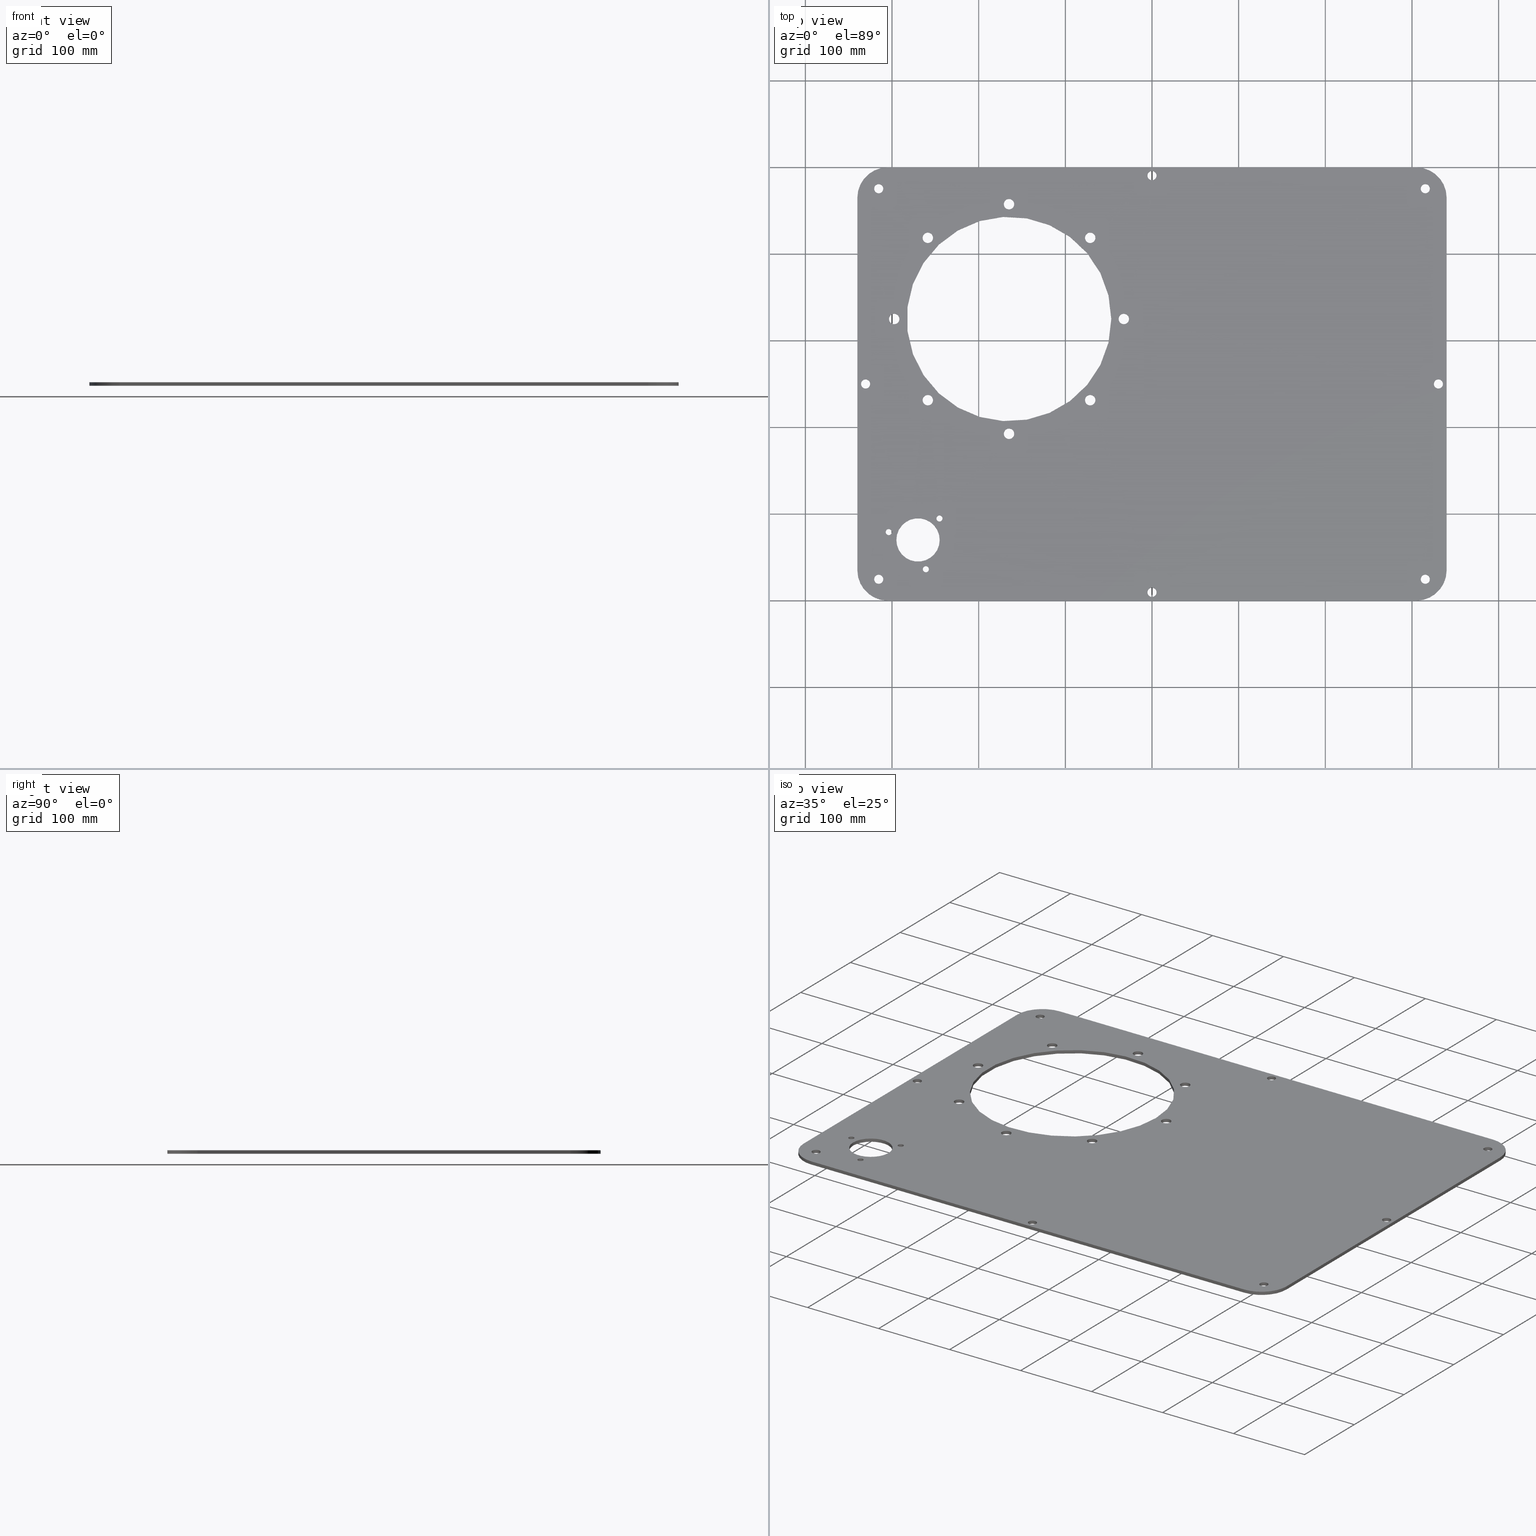
[diagram: canonical four-view strip — front | top / right | iso, engineering-drawing reading convention]
A machine part, canonical four-view strip (front | top / right | iso — engineering-drawing reading convention). The complete STEP part file that produces these views, byte-faithful:
ISO-10303-21;
HEADER;
/* Generated by software containing ST-Developer
 * from STEP Tools, Inc. (www.steptools.com) 
 */
/* OPTION: using custom schema-name function */

FILE_DESCRIPTION(
/* description */ (''),
/* implementation_level */ '2;1');

FILE_NAME(
/* name */ '100300',
/* time_stamp */ '2016-04-15T18:00:00+03:00',
/* author */ (''),
/* organization */ (''),
/* preprocessor_version */ 'ST-DEVELOPER v9',
/* originating_system */ 'UGS - NX 4.0',
/* authorisation */ '');

FILE_SCHEMA (('AUTOMOTIVE_DESIGN { 1 0 10303 214 1 1 1 1 }'));
ENDSEC;

DATA;
#10=SHAPE_REPRESENTATION_RELATIONSHIP('None',
'relationship between Form8D2Eoenm-None and Form8D2Eoenm-None',#22,#11);
#11=ADVANCED_BREP_SHAPE_REPRESENTATION('Form8D2Eoenm-None',(#32),#1041);
#12=SHAPE_DEFINITION_REPRESENTATION(#13,#22);
#13=PRODUCT_DEFINITION_SHAPE('','',#14);
#14=PRODUCT_DEFINITION(' ','',#16,#15);
#15=PRODUCT_DEFINITION_CONTEXT('part definition',#21,'design');
#16=PRODUCT_DEFINITION_FORMATION_WITH_SPECIFIED_SOURCE(' ',' ',#18,.NOT_KNOWN.);
#17=PRODUCT_RELATED_PRODUCT_CATEGORY('part','',(#18));
#18=PRODUCT('Form8D2Eoenm','Form8D2Eoenm',' ',(#19));
#19=PRODUCT_CONTEXT(' ',#21,'mechanical');
#20=APPLICATION_PROTOCOL_DEFINITION('international standard',
'automotive_design',2001,#21);
#21=APPLICATION_CONTEXT(
'core data for automotive mechanical design processes');
#22=SHAPE_REPRESENTATION('Form8D2Eoenm-None',(#622),#1041);
#23=PRESENTATION_LAYER_ASSIGNMENT('251','Layer 251',(#32));
#24=STYLED_ITEM('',(#25),#32);
#25=PRESENTATION_STYLE_ASSIGNMENT((#26));
#26=SURFACE_STYLE_USAGE(.BOTH.,#27);
#27=SURFACE_SIDE_STYLE('',(#28));
#28=SURFACE_STYLE_FILL_AREA(#29);
#29=FILL_AREA_STYLE('',(#30));
#30=FILL_AREA_STYLE_COLOUR('',#31);
#31=COLOUR_RGB('Light Gray',0.6,0.6,0.6);
#32=MANIFOLD_SOLID_BREP('',#33);
#33=CLOSED_SHELL('',(#193,#194,#195,#196,#197,#198,#199,#200,#201,#202,#203,
#204,#205,#206,#207,#208,#209,#210,#211,#212,#213,#214,#215,#216,#217,#218,
#219,#220,#221,#222,#223));
#34=FACE_BOUND('',#247,.T.);
#35=FACE_BOUND('',#248,.T.);
#36=FACE_BOUND('',#249,.T.);
#37=FACE_BOUND('',#250,.T.);
#38=FACE_BOUND('',#251,.T.);
#39=FACE_BOUND('',#252,.T.);
#40=FACE_BOUND('',#253,.T.);
#41=FACE_BOUND('',#254,.T.);
#42=FACE_BOUND('',#255,.T.);
#43=FACE_BOUND('',#256,.T.);
#44=FACE_BOUND('',#257,.T.);
#45=FACE_BOUND('',#258,.T.);
#46=FACE_BOUND('',#259,.T.);
#47=FACE_BOUND('',#260,.T.);
#48=FACE_BOUND('',#261,.T.);
#49=FACE_BOUND('',#262,.T.);
#50=FACE_BOUND('',#263,.T.);
#51=FACE_BOUND('',#264,.T.);
#52=FACE_BOUND('',#265,.T.);
#53=FACE_BOUND('',#266,.T.);
#54=FACE_BOUND('',#267,.T.);
#55=FACE_BOUND('',#268,.T.);
#56=FACE_BOUND('',#269,.T.);
#57=FACE_BOUND('',#270,.T.);
#58=FACE_BOUND('',#271,.T.);
#59=FACE_BOUND('',#272,.T.);
#60=FACE_BOUND('',#273,.T.);
#61=FACE_BOUND('',#274,.T.);
#62=FACE_BOUND('',#275,.T.);
#63=FACE_BOUND('',#276,.T.);
#64=FACE_BOUND('',#277,.T.);
#65=FACE_BOUND('',#278,.T.);
#66=FACE_BOUND('',#279,.T.);
#67=FACE_BOUND('',#280,.T.);
#68=FACE_BOUND('',#281,.T.);
#69=FACE_BOUND('',#282,.T.);
#70=FACE_BOUND('',#283,.T.);
#71=FACE_BOUND('',#284,.T.);
#72=FACE_BOUND('',#285,.T.);
#73=FACE_BOUND('',#286,.T.);
#74=FACE_BOUND('',#288,.T.);
#75=FACE_BOUND('',#289,.T.);
#76=FACE_BOUND('',#291,.T.);
#77=FACE_BOUND('',#292,.T.);
#78=FACE_BOUND('',#293,.T.);
#79=FACE_BOUND('',#294,.T.);
#80=FACE_BOUND('',#295,.T.);
#81=FACE_BOUND('',#296,.T.);
#82=FACE_BOUND('',#297,.T.);
#83=FACE_BOUND('',#298,.T.);
#84=FACE_BOUND('',#299,.T.);
#85=FACE_BOUND('',#300,.T.);
#86=FACE_BOUND('',#301,.T.);
#87=FACE_BOUND('',#302,.T.);
#88=FACE_BOUND('',#303,.T.);
#89=FACE_BOUND('',#304,.T.);
#90=FACE_BOUND('',#305,.T.);
#91=FACE_BOUND('',#306,.T.);
#92=FACE_BOUND('',#307,.T.);
#93=FACE_BOUND('',#308,.T.);
#94=FACE_BOUND('',#309,.T.);
#95=FACE_BOUND('',#310,.T.);
#96=FACE_BOUND('',#311,.T.);
#97=FACE_BOUND('',#313,.T.);
#98=FACE_BOUND('',#314,.T.);
#99=FACE_BOUND('',#315,.T.);
#100=FACE_BOUND('',#316,.T.);
#101=FACE_BOUND('',#317,.T.);
#102=FACE_BOUND('',#318,.T.);
#103=FACE_BOUND('',#319,.T.);
#104=FACE_BOUND('',#320,.T.);
#105=FACE_BOUND('',#321,.T.);
#106=FACE_BOUND('',#322,.T.);
#107=FACE_BOUND('',#323,.T.);
#108=FACE_BOUND('',#324,.T.);
#109=FACE_BOUND('',#325,.T.);
#110=FACE_BOUND('',#326,.T.);
#111=FACE_BOUND('',#327,.T.);
#112=FACE_BOUND('',#328,.T.);
#113=FACE_BOUND('',#329,.T.);
#114=FACE_BOUND('',#330,.T.);
#115=FACE_BOUND('',#331,.T.);
#116=FACE_BOUND('',#332,.T.);
#117=FACE_BOUND('',#333,.T.);
#118=CYLINDRICAL_SURFACE('',#626,35.);
#119=CYLINDRICAL_SURFACE('',#630,35.);
#120=CYLINDRICAL_SURFACE('',#634,35.);
#121=CYLINDRICAL_SURFACE('',#638,5.25);
#122=CYLINDRICAL_SURFACE('',#641,5.25);
#123=CYLINDRICAL_SURFACE('',#644,6.);
#124=CYLINDRICAL_SURFACE('',#647,6.);
#125=CYLINDRICAL_SURFACE('',#650,3.5);
#126=CYLINDRICAL_SURFACE('',#653,25.);
#127=CYLINDRICAL_SURFACE('',#656,6.);
#128=CYLINDRICAL_SURFACE('',#659,118.);
#129=CYLINDRICAL_SURFACE('',#662,3.5);
#130=CYLINDRICAL_SURFACE('',#665,3.5);
#131=CYLINDRICAL_SURFACE('',#668,6.);
#132=CYLINDRICAL_SURFACE('',#671,5.25);
#133=CYLINDRICAL_SURFACE('',#674,5.25);
#134=CYLINDRICAL_SURFACE('',#677,5.25);
#135=CYLINDRICAL_SURFACE('',#680,6.);
#136=CYLINDRICAL_SURFACE('',#683,6.);
#137=CYLINDRICAL_SURFACE('',#686,6.);
#138=CYLINDRICAL_SURFACE('',#689,6.);
#139=CYLINDRICAL_SURFACE('',#692,5.25);
#140=CYLINDRICAL_SURFACE('',#695,5.25);
#141=CYLINDRICAL_SURFACE('',#698,35.);
#142=CYLINDRICAL_SURFACE('',#701,5.25);
#143=CIRCLE('',#624,35.);
#144=CIRCLE('',#625,35.);
#145=CIRCLE('',#628,35.);
#146=CIRCLE('',#629,35.);
#147=CIRCLE('',#632,35.);
#148=CIRCLE('',#633,35.);
#149=CIRCLE('',#636,5.25);
#150=CIRCLE('',#637,5.25);
#151=CIRCLE('',#639,5.25);
#152=CIRCLE('',#640,5.25);
#153=CIRCLE('',#642,6.);
#154=CIRCLE('',#643,6.);
#155=CIRCLE('',#645,6.);
#156=CIRCLE('',#646,6.);
#157=CIRCLE('',#648,3.5);
#158=CIRCLE('',#649,3.5);
#159=CIRCLE('',#651,25.);
#160=CIRCLE('',#652,25.);
#161=CIRCLE('',#654,6.);
#162=CIRCLE('',#655,6.);
#163=CIRCLE('',#657,118.);
#164=CIRCLE('',#658,118.);
#165=CIRCLE('',#660,3.5);
#166=CIRCLE('',#661,3.5);
#167=CIRCLE('',#663,3.5);
#168=CIRCLE('',#664,3.5);
#169=CIRCLE('',#666,6.);
#170=CIRCLE('',#667,6.);
#171=CIRCLE('',#669,5.25);
#172=CIRCLE('',#670,5.25);
#173=CIRCLE('',#672,5.25);
#174=CIRCLE('',#673,5.25);
#175=CIRCLE('',#675,5.25);
#176=CIRCLE('',#676,5.25);
#177=CIRCLE('',#678,6.);
#178=CIRCLE('',#679,6.);
#179=CIRCLE('',#681,6.);
#180=CIRCLE('',#682,6.);
#181=CIRCLE('',#684,6.);
#182=CIRCLE('',#685,6.);
#183=CIRCLE('',#687,6.);
#184=CIRCLE('',#688,6.);
#185=CIRCLE('',#690,5.25);
#186=CIRCLE('',#691,5.25);
#187=CIRCLE('',#693,5.25);
#188=CIRCLE('',#694,5.25);
#189=CIRCLE('',#696,35.);
#190=CIRCLE('',#697,35.);
#191=CIRCLE('',#699,5.25);
#192=CIRCLE('',#700,5.25);
#193=ADVANCED_FACE('',(#230),#224,.F.);
#194=ADVANCED_FACE('',(#231),#118,.T.);
#195=ADVANCED_FACE('',(#232),#225,.F.);
#196=ADVANCED_FACE('',(#233),#119,.T.);
#197=ADVANCED_FACE('',(#234),#226,.F.);
#198=ADVANCED_FACE('',(#235),#120,.T.);
#199=ADVANCED_FACE('',(#236),#227,.F.);
#200=ADVANCED_FACE('',(#34,#35),#121,.F.);
#201=ADVANCED_FACE('',(#36,#37),#122,.F.);
#202=ADVANCED_FACE('',(#38,#39),#123,.F.);
#203=ADVANCED_FACE('',(#40,#41),#124,.F.);
#204=ADVANCED_FACE('',(#42,#43),#125,.F.);
#205=ADVANCED_FACE('',(#44,#45),#126,.F.);
#206=ADVANCED_FACE('',(#46,#47),#127,.F.);
#207=ADVANCED_FACE('',(#48,#49),#128,.F.);
#208=ADVANCED_FACE('',(#50,#51),#129,.F.);
#209=ADVANCED_FACE('',(#52,#53),#130,.F.);
#210=ADVANCED_FACE('',(#54,#55),#131,.F.);
#211=ADVANCED_FACE('',(#56,#57),#132,.F.);
#212=ADVANCED_FACE('',(#58,#59),#133,.F.);
#213=ADVANCED_FACE('',(#60,#61),#134,.F.);
#214=ADVANCED_FACE('',(#62,#63),#135,.F.);
#215=ADVANCED_FACE('',(#64,#65),#136,.F.);
#216=ADVANCED_FACE('',(#66,#67),#137,.F.);
#217=ADVANCED_FACE('',(#68,#69),#138,.F.);
#218=ADVANCED_FACE('',(#70,#71),#139,.F.);
#219=ADVANCED_FACE('',(#72,#73),#140,.F.);
#220=ADVANCED_FACE('',(#237),#141,.T.);
#221=ADVANCED_FACE('',(#74,#75),#142,.F.);
#222=ADVANCED_FACE('',(#238,#76,#77,#78,#79,#80,#81,#82,#83,#84,#85,#86,
#87,#88,#89,#90,#91,#92,#93,#94,#95,#96),#228,.T.);
#223=ADVANCED_FACE('',(#239,#97,#98,#99,#100,#101,#102,#103,#104,#105,#106,
#107,#108,#109,#110,#111,#112,#113,#114,#115,#116,#117),#229,.F.);
#224=PLANE('',#623);
#225=PLANE('',#627);
#226=PLANE('',#631);
#227=PLANE('',#635);
#228=PLANE('',#702);
#229=PLANE('',#703);
#230=FACE_OUTER_BOUND('',#240,.T.);
#231=FACE_OUTER_BOUND('',#241,.T.);
#232=FACE_OUTER_BOUND('',#242,.T.);
#233=FACE_OUTER_BOUND('',#243,.T.);
#234=FACE_OUTER_BOUND('',#244,.T.);
#235=FACE_OUTER_BOUND('',#245,.T.);
#236=FACE_OUTER_BOUND('',#246,.T.);
#237=FACE_OUTER_BOUND('',#287,.T.);
#238=FACE_OUTER_BOUND('',#290,.T.);
#239=FACE_OUTER_BOUND('',#312,.T.);
#240=EDGE_LOOP('',(#334,#335,#336,#337));
#241=EDGE_LOOP('',(#338,#339,#340,#341));
#242=EDGE_LOOP('',(#342,#343,#344,#345));
#243=EDGE_LOOP('',(#346,#347,#348,#349));
#244=EDGE_LOOP('',(#350,#351,#352,#353));
#245=EDGE_LOOP('',(#354,#355,#356,#357));
#246=EDGE_LOOP('',(#358,#359,#360,#361));
#247=EDGE_LOOP('',(#362));
#248=EDGE_LOOP('',(#363));
#249=EDGE_LOOP('',(#364));
#250=EDGE_LOOP('',(#365));
#251=EDGE_LOOP('',(#366));
#252=EDGE_LOOP('',(#367));
#253=EDGE_LOOP('',(#368));
#254=EDGE_LOOP('',(#369));
#255=EDGE_LOOP('',(#370));
#256=EDGE_LOOP('',(#371));
#257=EDGE_LOOP('',(#372));
#258=EDGE_LOOP('',(#373));
#259=EDGE_LOOP('',(#374));
#260=EDGE_LOOP('',(#375));
#261=EDGE_LOOP('',(#376));
#262=EDGE_LOOP('',(#377));
#263=EDGE_LOOP('',(#378));
#264=EDGE_LOOP('',(#379));
#265=EDGE_LOOP('',(#380));
#266=EDGE_LOOP('',(#381));
#267=EDGE_LOOP('',(#382));
#268=EDGE_LOOP('',(#383));
#269=EDGE_LOOP('',(#384));
#270=EDGE_LOOP('',(#385));
#271=EDGE_LOOP('',(#386));
#272=EDGE_LOOP('',(#387));
#273=EDGE_LOOP('',(#388));
#274=EDGE_LOOP('',(#389));
#275=EDGE_LOOP('',(#390));
#276=EDGE_LOOP('',(#391));
#277=EDGE_LOOP('',(#392));
#278=EDGE_LOOP('',(#393));
#279=EDGE_LOOP('',(#394));
#280=EDGE_LOOP('',(#395));
#281=EDGE_LOOP('',(#396));
#282=EDGE_LOOP('',(#397));
#283=EDGE_LOOP('',(#398));
#284=EDGE_LOOP('',(#399));
#285=EDGE_LOOP('',(#400));
#286=EDGE_LOOP('',(#401));
#287=EDGE_LOOP('',(#402,#403,#404,#405));
#288=EDGE_LOOP('',(#406));
#289=EDGE_LOOP('',(#407));
#290=EDGE_LOOP('',(#408,#409,#410,#411,#412,#413,#414,#415));
#291=EDGE_LOOP('',(#416));
#292=EDGE_LOOP('',(#417));
#293=EDGE_LOOP('',(#418));
#294=EDGE_LOOP('',(#419));
#295=EDGE_LOOP('',(#420));
#296=EDGE_LOOP('',(#421));
#297=EDGE_LOOP('',(#422));
#298=EDGE_LOOP('',(#423));
#299=EDGE_LOOP('',(#424));
#300=EDGE_LOOP('',(#425));
#301=EDGE_LOOP('',(#426));
#302=EDGE_LOOP('',(#427));
#303=EDGE_LOOP('',(#428));
#304=EDGE_LOOP('',(#429));
#305=EDGE_LOOP('',(#430));
#306=EDGE_LOOP('',(#431));
#307=EDGE_LOOP('',(#432));
#308=EDGE_LOOP('',(#433));
#309=EDGE_LOOP('',(#434));
#310=EDGE_LOOP('',(#435));
#311=EDGE_LOOP('',(#436));
#312=EDGE_LOOP('',(#437,#438,#439,#440,#441,#442,#443,#444));
#313=EDGE_LOOP('',(#445));
#314=EDGE_LOOP('',(#446));
#315=EDGE_LOOP('',(#447));
#316=EDGE_LOOP('',(#448));
#317=EDGE_LOOP('',(#449));
#318=EDGE_LOOP('',(#450));
#319=EDGE_LOOP('',(#451));
#320=EDGE_LOOP('',(#452));
#321=EDGE_LOOP('',(#453));
#322=EDGE_LOOP('',(#454));
#323=EDGE_LOOP('',(#455));
#324=EDGE_LOOP('',(#456));
#325=EDGE_LOOP('',(#457));
#326=EDGE_LOOP('',(#458));
#327=EDGE_LOOP('',(#459));
#328=EDGE_LOOP('',(#460));
#329=EDGE_LOOP('',(#461));
#330=EDGE_LOOP('',(#462));
#331=EDGE_LOOP('',(#463));
#332=EDGE_LOOP('',(#464));
#333=EDGE_LOOP('',(#465));
#334=ORIENTED_EDGE('',*,*,#524,.T.);
#335=ORIENTED_EDGE('',*,*,#525,.F.);
#336=ORIENTED_EDGE('',*,*,#526,.F.);
#337=ORIENTED_EDGE('',*,*,#527,.T.);
#338=ORIENTED_EDGE('',*,*,#528,.T.);
#339=ORIENTED_EDGE('',*,*,#529,.F.);
#340=ORIENTED_EDGE('',*,*,#530,.F.);
#341=ORIENTED_EDGE('',*,*,#525,.T.);
#342=ORIENTED_EDGE('',*,*,#531,.T.);
#343=ORIENTED_EDGE('',*,*,#532,.F.);
#344=ORIENTED_EDGE('',*,*,#533,.F.);
#345=ORIENTED_EDGE('',*,*,#529,.T.);
#346=ORIENTED_EDGE('',*,*,#534,.T.);
#347=ORIENTED_EDGE('',*,*,#535,.F.);
#348=ORIENTED_EDGE('',*,*,#536,.F.);
#349=ORIENTED_EDGE('',*,*,#532,.T.);
#350=ORIENTED_EDGE('',*,*,#537,.T.);
#351=ORIENTED_EDGE('',*,*,#538,.F.);
#352=ORIENTED_EDGE('',*,*,#539,.F.);
#353=ORIENTED_EDGE('',*,*,#535,.T.);
#354=ORIENTED_EDGE('',*,*,#540,.T.);
#355=ORIENTED_EDGE('',*,*,#541,.F.);
#356=ORIENTED_EDGE('',*,*,#542,.F.);
#357=ORIENTED_EDGE('',*,*,#538,.T.);
#358=ORIENTED_EDGE('',*,*,#543,.T.);
#359=ORIENTED_EDGE('',*,*,#544,.F.);
#360=ORIENTED_EDGE('',*,*,#545,.F.);
#361=ORIENTED_EDGE('',*,*,#541,.T.);
#362=ORIENTED_EDGE('',*,*,#546,.T.);
#363=ORIENTED_EDGE('',*,*,#547,.F.);
#364=ORIENTED_EDGE('',*,*,#548,.F.);
#365=ORIENTED_EDGE('',*,*,#549,.T.);
#366=ORIENTED_EDGE('',*,*,#550,.T.);
#367=ORIENTED_EDGE('',*,*,#551,.F.);
#368=ORIENTED_EDGE('',*,*,#552,.T.);
#369=ORIENTED_EDGE('',*,*,#553,.F.);
#370=ORIENTED_EDGE('',*,*,#554,.F.);
#371=ORIENTED_EDGE('',*,*,#555,.T.);
#372=ORIENTED_EDGE('',*,*,#556,.F.);
#373=ORIENTED_EDGE('',*,*,#557,.T.);
#374=ORIENTED_EDGE('',*,*,#558,.T.);
#375=ORIENTED_EDGE('',*,*,#559,.F.);
#376=ORIENTED_EDGE('',*,*,#560,.T.);
#377=ORIENTED_EDGE('',*,*,#561,.F.);
#378=ORIENTED_EDGE('',*,*,#562,.F.);
#379=ORIENTED_EDGE('',*,*,#563,.T.);
#380=ORIENTED_EDGE('',*,*,#564,.F.);
#381=ORIENTED_EDGE('',*,*,#565,.T.);
#382=ORIENTED_EDGE('',*,*,#566,.T.);
#383=ORIENTED_EDGE('',*,*,#567,.F.);
#384=ORIENTED_EDGE('',*,*,#568,.F.);
#385=ORIENTED_EDGE('',*,*,#569,.T.);
#386=ORIENTED_EDGE('',*,*,#570,.F.);
#387=ORIENTED_EDGE('',*,*,#571,.T.);
#388=ORIENTED_EDGE('',*,*,#572,.T.);
#389=ORIENTED_EDGE('',*,*,#573,.F.);
#390=ORIENTED_EDGE('',*,*,#574,.T.);
#391=ORIENTED_EDGE('',*,*,#575,.F.);
#392=ORIENTED_EDGE('',*,*,#576,.T.);
#393=ORIENTED_EDGE('',*,*,#577,.F.);
#394=ORIENTED_EDGE('',*,*,#578,.T.);
#395=ORIENTED_EDGE('',*,*,#579,.F.);
#396=ORIENTED_EDGE('',*,*,#580,.T.);
#397=ORIENTED_EDGE('',*,*,#581,.F.);
#398=ORIENTED_EDGE('',*,*,#582,.F.);
#399=ORIENTED_EDGE('',*,*,#583,.T.);
#400=ORIENTED_EDGE('',*,*,#584,.T.);
#401=ORIENTED_EDGE('',*,*,#585,.F.);
#402=ORIENTED_EDGE('',*,*,#586,.T.);
#403=ORIENTED_EDGE('',*,*,#527,.F.);
#404=ORIENTED_EDGE('',*,*,#587,.F.);
#405=ORIENTED_EDGE('',*,*,#544,.T.);
#406=ORIENTED_EDGE('',*,*,#588,.T.);
#407=ORIENTED_EDGE('',*,*,#589,.F.);
#408=ORIENTED_EDGE('',*,*,#526,.T.);
#409=ORIENTED_EDGE('',*,*,#530,.T.);
#410=ORIENTED_EDGE('',*,*,#533,.T.);
#411=ORIENTED_EDGE('',*,*,#536,.T.);
#412=ORIENTED_EDGE('',*,*,#539,.T.);
#413=ORIENTED_EDGE('',*,*,#542,.T.);
#414=ORIENTED_EDGE('',*,*,#545,.T.);
#415=ORIENTED_EDGE('',*,*,#587,.T.);
#416=ORIENTED_EDGE('',*,*,#584,.F.);
#417=ORIENTED_EDGE('',*,*,#582,.T.);
#418=ORIENTED_EDGE('',*,*,#580,.F.);
#419=ORIENTED_EDGE('',*,*,#578,.F.);
#420=ORIENTED_EDGE('',*,*,#576,.F.);
#421=ORIENTED_EDGE('',*,*,#574,.F.);
#422=ORIENTED_EDGE('',*,*,#572,.F.);
#423=ORIENTED_EDGE('',*,*,#570,.T.);
#424=ORIENTED_EDGE('',*,*,#568,.T.);
#425=ORIENTED_EDGE('',*,*,#566,.F.);
#426=ORIENTED_EDGE('',*,*,#564,.T.);
#427=ORIENTED_EDGE('',*,*,#562,.T.);
#428=ORIENTED_EDGE('',*,*,#560,.F.);
#429=ORIENTED_EDGE('',*,*,#558,.F.);
#430=ORIENTED_EDGE('',*,*,#556,.T.);
#431=ORIENTED_EDGE('',*,*,#554,.T.);
#432=ORIENTED_EDGE('',*,*,#552,.F.);
#433=ORIENTED_EDGE('',*,*,#550,.F.);
#434=ORIENTED_EDGE('',*,*,#548,.T.);
#435=ORIENTED_EDGE('',*,*,#546,.F.);
#436=ORIENTED_EDGE('',*,*,#588,.F.);
#437=ORIENTED_EDGE('',*,*,#524,.F.);
#438=ORIENTED_EDGE('',*,*,#586,.F.);
#439=ORIENTED_EDGE('',*,*,#543,.F.);
#440=ORIENTED_EDGE('',*,*,#540,.F.);
#441=ORIENTED_EDGE('',*,*,#537,.F.);
#442=ORIENTED_EDGE('',*,*,#534,.F.);
#443=ORIENTED_EDGE('',*,*,#531,.F.);
#444=ORIENTED_EDGE('',*,*,#528,.F.);
#445=ORIENTED_EDGE('',*,*,#585,.T.);
#446=ORIENTED_EDGE('',*,*,#583,.F.);
#447=ORIENTED_EDGE('',*,*,#581,.T.);
#448=ORIENTED_EDGE('',*,*,#579,.T.);
#449=ORIENTED_EDGE('',*,*,#577,.T.);
#450=ORIENTED_EDGE('',*,*,#575,.T.);
#451=ORIENTED_EDGE('',*,*,#573,.T.);
#452=ORIENTED_EDGE('',*,*,#571,.F.);
#453=ORIENTED_EDGE('',*,*,#569,.F.);
#454=ORIENTED_EDGE('',*,*,#567,.T.);
#455=ORIENTED_EDGE('',*,*,#565,.F.);
#456=ORIENTED_EDGE('',*,*,#563,.F.);
#457=ORIENTED_EDGE('',*,*,#561,.T.);
#458=ORIENTED_EDGE('',*,*,#559,.T.);
#459=ORIENTED_EDGE('',*,*,#557,.F.);
#460=ORIENTED_EDGE('',*,*,#555,.F.);
#461=ORIENTED_EDGE('',*,*,#553,.T.);
#462=ORIENTED_EDGE('',*,*,#551,.T.);
#463=ORIENTED_EDGE('',*,*,#549,.F.);
#464=ORIENTED_EDGE('',*,*,#547,.T.);
#465=ORIENTED_EDGE('',*,*,#589,.T.);
#466=VERTEX_POINT('',#886);
#467=VERTEX_POINT('',#887);
#468=VERTEX_POINT('',#889);
#469=VERTEX_POINT('',#891);
#470=VERTEX_POINT('',#895);
#471=VERTEX_POINT('',#897);
#472=VERTEX_POINT('',#901);
#473=VERTEX_POINT('',#903);
#474=VERTEX_POINT('',#907);
#475=VERTEX_POINT('',#909);
#476=VERTEX_POINT('',#913);
#477=VERTEX_POINT('',#915);
#478=VERTEX_POINT('',#919);
#479=VERTEX_POINT('',#921);
#480=VERTEX_POINT('',#925);
#481=VERTEX_POINT('',#927);
#482=VERTEX_POINT('',#931);
#483=VERTEX_POINT('',#933);
#484=VERTEX_POINT('',#936);
#485=VERTEX_POINT('',#938);
#486=VERTEX_POINT('',#941);
#487=VERTEX_POINT('',#943);
#488=VERTEX_POINT('',#946);
#489=VERTEX_POINT('',#948);
#490=VERTEX_POINT('',#951);
#491=VERTEX_POINT('',#953);
#492=VERTEX_POINT('',#956);
#493=VERTEX_POINT('',#958);
#494=VERTEX_POINT('',#961);
#495=VERTEX_POINT('',#963);
#496=VERTEX_POINT('',#966);
#497=VERTEX_POINT('',#968);
#498=VERTEX_POINT('',#971);
#499=VERTEX_POINT('',#973);
#500=VERTEX_POINT('',#976);
#501=VERTEX_POINT('',#978);
#502=VERTEX_POINT('',#981);
#503=VERTEX_POINT('',#983);
#504=VERTEX_POINT('',#986);
#505=VERTEX_POINT('',#988);
#506=VERTEX_POINT('',#991);
#507=VERTEX_POINT('',#993);
#508=VERTEX_POINT('',#996);
#509=VERTEX_POINT('',#998);
#510=VERTEX_POINT('',#1001);
#511=VERTEX_POINT('',#1003);
#512=VERTEX_POINT('',#1006);
#513=VERTEX_POINT('',#1008);
#514=VERTEX_POINT('',#1011);
#515=VERTEX_POINT('',#1013);
#516=VERTEX_POINT('',#1016);
#517=VERTEX_POINT('',#1018);
#518=VERTEX_POINT('',#1021);
#519=VERTEX_POINT('',#1023);
#520=VERTEX_POINT('',#1026);
#521=VERTEX_POINT('',#1028);
#522=VERTEX_POINT('',#1034);
#523=VERTEX_POINT('',#1036);
#524=EDGE_CURVE('',#466,#467,#590,.T.);
#525=EDGE_CURVE('',#468,#467,#591,.T.);
#526=EDGE_CURVE('',#469,#468,#592,.T.);
#527=EDGE_CURVE('',#469,#466,#593,.T.);
#528=EDGE_CURVE('',#467,#470,#143,.T.);
#529=EDGE_CURVE('',#471,#470,#594,.T.);
#530=EDGE_CURVE('',#468,#471,#144,.T.);
#531=EDGE_CURVE('',#470,#472,#595,.T.);
#532=EDGE_CURVE('',#473,#472,#596,.T.);
#533=EDGE_CURVE('',#471,#473,#597,.T.);
#534=EDGE_CURVE('',#472,#474,#145,.T.);
#535=EDGE_CURVE('',#475,#474,#598,.T.);
#536=EDGE_CURVE('',#473,#475,#146,.T.);
#537=EDGE_CURVE('',#474,#476,#599,.T.);
#538=EDGE_CURVE('',#477,#476,#600,.T.);
#539=EDGE_CURVE('',#475,#477,#601,.T.);
#540=EDGE_CURVE('',#476,#478,#147,.T.);
#541=EDGE_CURVE('',#479,#478,#602,.T.);
#542=EDGE_CURVE('',#477,#479,#148,.T.);
#543=EDGE_CURVE('',#478,#480,#603,.T.);
#544=EDGE_CURVE('',#481,#480,#604,.T.);
#545=EDGE_CURVE('',#479,#481,#605,.T.);
#546=EDGE_CURVE('',#482,#482,#149,.T.);
#547=EDGE_CURVE('',#483,#483,#150,.T.);
#548=EDGE_CURVE('',#484,#484,#151,.T.);
#549=EDGE_CURVE('',#485,#485,#152,.T.);
#550=EDGE_CURVE('',#486,#486,#153,.T.);
#551=EDGE_CURVE('',#487,#487,#154,.T.);
#552=EDGE_CURVE('',#488,#488,#155,.T.);
#553=EDGE_CURVE('',#489,#489,#156,.T.);
#554=EDGE_CURVE('',#490,#490,#157,.T.);
#555=EDGE_CURVE('',#491,#491,#158,.T.);
#556=EDGE_CURVE('',#492,#492,#159,.T.);
#557=EDGE_CURVE('',#493,#493,#160,.T.);
#558=EDGE_CURVE('',#494,#494,#161,.T.);
#559=EDGE_CURVE('',#495,#495,#162,.T.);
#560=EDGE_CURVE('',#496,#496,#163,.T.);
#561=EDGE_CURVE('',#497,#497,#164,.T.);
#562=EDGE_CURVE('',#498,#498,#165,.T.);
#563=EDGE_CURVE('',#499,#499,#166,.T.);
#564=EDGE_CURVE('',#500,#500,#167,.T.);
#565=EDGE_CURVE('',#501,#501,#168,.T.);
#566=EDGE_CURVE('',#502,#502,#169,.T.);
#567=EDGE_CURVE('',#503,#503,#170,.T.);
#568=EDGE_CURVE('',#504,#504,#171,.T.);
#569=EDGE_CURVE('',#505,#505,#172,.T.);
#570=EDGE_CURVE('',#506,#506,#173,.T.);
#571=EDGE_CURVE('',#507,#507,#174,.T.);
#572=EDGE_CURVE('',#508,#508,#175,.T.);
#573=EDGE_CURVE('',#509,#509,#176,.T.);
#574=EDGE_CURVE('',#510,#510,#177,.T.);
#575=EDGE_CURVE('',#511,#511,#178,.T.);
#576=EDGE_CURVE('',#512,#512,#179,.T.);
#577=EDGE_CURVE('',#513,#513,#180,.T.);
#578=EDGE_CURVE('',#514,#514,#181,.T.);
#579=EDGE_CURVE('',#515,#515,#182,.T.);
#580=EDGE_CURVE('',#516,#516,#183,.T.);
#581=EDGE_CURVE('',#517,#517,#184,.T.);
#582=EDGE_CURVE('',#518,#518,#185,.T.);
#583=EDGE_CURVE('',#519,#519,#186,.T.);
#584=EDGE_CURVE('',#520,#520,#187,.T.);
#585=EDGE_CURVE('',#521,#521,#188,.T.);
#586=EDGE_CURVE('',#480,#466,#189,.T.);
#587=EDGE_CURVE('',#481,#469,#190,.T.);
#588=EDGE_CURVE('',#522,#522,#191,.T.);
#589=EDGE_CURVE('',#523,#523,#192,.T.);
#590=LINE('',#885,#606);
#591=LINE('',#888,#607);
#592=LINE('',#890,#608);
#593=LINE('',#892,#609);
#594=LINE('',#896,#610);
#595=LINE('',#900,#611);
#596=LINE('',#902,#612);
#597=LINE('',#904,#613);
#598=LINE('',#908,#614);
#599=LINE('',#912,#615);
#600=LINE('',#914,#616);
#601=LINE('',#916,#617);
#602=LINE('',#920,#618);
#603=LINE('',#924,#619);
#604=LINE('',#926,#620);
#605=LINE('',#928,#621);
#606=VECTOR('',#706,1.);
#607=VECTOR('',#707,1.);
#608=VECTOR('',#708,1.);
#609=VECTOR('',#709,1.);
#610=VECTOR('',#714,1.);
#611=VECTOR('',#719,1.);
#612=VECTOR('',#720,1.);
#613=VECTOR('',#721,1.);
#614=VECTOR('',#726,1.);
#615=VECTOR('',#731,1.);
#616=VECTOR('',#732,1.);
#617=VECTOR('',#733,1.);
#618=VECTOR('',#738,1.);
#619=VECTOR('',#743,1.);
#620=VECTOR('',#744,1.);
#621=VECTOR('',#745,1.);
#622=AXIS2_PLACEMENT_3D('',#884,#704,#705);
#623=AXIS2_PLACEMENT_3D('',#893,#710,#711);
#624=AXIS2_PLACEMENT_3D('',#894,#712,#713);
#625=AXIS2_PLACEMENT_3D('',#898,#715,#716);
#626=AXIS2_PLACEMENT_3D('',#899,#717,#718);
#627=AXIS2_PLACEMENT_3D('',#905,#722,#723);
#628=AXIS2_PLACEMENT_3D('',#906,#724,#725);
#629=AXIS2_PLACEMENT_3D('',#910,#727,#728);
#630=AXIS2_PLACEMENT_3D('',#911,#729,#730);
#631=AXIS2_PLACEMENT_3D('',#917,#734,#735);
#632=AXIS2_PLACEMENT_3D('',#918,#736,#737);
#633=AXIS2_PLACEMENT_3D('',#922,#739,#740);
#634=AXIS2_PLACEMENT_3D('',#923,#741,#742);
#635=AXIS2_PLACEMENT_3D('',#929,#746,#747);
#636=AXIS2_PLACEMENT_3D('',#930,#748,#749);
#637=AXIS2_PLACEMENT_3D('',#932,#750,#751);
#638=AXIS2_PLACEMENT_3D('',#934,#752,#753);
#639=AXIS2_PLACEMENT_3D('',#935,#754,#755);
#640=AXIS2_PLACEMENT_3D('',#937,#756,#757);
#641=AXIS2_PLACEMENT_3D('',#939,#758,#759);
#642=AXIS2_PLACEMENT_3D('',#940,#760,#761);
#643=AXIS2_PLACEMENT_3D('',#942,#762,#763);
#644=AXIS2_PLACEMENT_3D('',#944,#764,#765);
#645=AXIS2_PLACEMENT_3D('',#945,#766,#767);
#646=AXIS2_PLACEMENT_3D('',#947,#768,#769);
#647=AXIS2_PLACEMENT_3D('',#949,#770,#771);
#648=AXIS2_PLACEMENT_3D('',#950,#772,#773);
#649=AXIS2_PLACEMENT_3D('',#952,#774,#775);
#650=AXIS2_PLACEMENT_3D('',#954,#776,#777);
#651=AXIS2_PLACEMENT_3D('',#955,#778,#779);
#652=AXIS2_PLACEMENT_3D('',#957,#780,#781);
#653=AXIS2_PLACEMENT_3D('',#959,#782,#783);
#654=AXIS2_PLACEMENT_3D('',#960,#784,#785);
#655=AXIS2_PLACEMENT_3D('',#962,#786,#787);
#656=AXIS2_PLACEMENT_3D('',#964,#788,#789);
#657=AXIS2_PLACEMENT_3D('',#965,#790,#791);
#658=AXIS2_PLACEMENT_3D('',#967,#792,#793);
#659=AXIS2_PLACEMENT_3D('',#969,#794,#795);
#660=AXIS2_PLACEMENT_3D('',#970,#796,#797);
#661=AXIS2_PLACEMENT_3D('',#972,#798,#799);
#662=AXIS2_PLACEMENT_3D('',#974,#800,#801);
#663=AXIS2_PLACEMENT_3D('',#975,#802,#803);
#664=AXIS2_PLACEMENT_3D('',#977,#804,#805);
#665=AXIS2_PLACEMENT_3D('',#979,#806,#807);
#666=AXIS2_PLACEMENT_3D('',#980,#808,#809);
#667=AXIS2_PLACEMENT_3D('',#982,#810,#811);
#668=AXIS2_PLACEMENT_3D('',#984,#812,#813);
#669=AXIS2_PLACEMENT_3D('',#985,#814,#815);
#670=AXIS2_PLACEMENT_3D('',#987,#816,#817);
#671=AXIS2_PLACEMENT_3D('',#989,#818,#819);
#672=AXIS2_PLACEMENT_3D('',#990,#820,#821);
#673=AXIS2_PLACEMENT_3D('',#992,#822,#823);
#674=AXIS2_PLACEMENT_3D('',#994,#824,#825);
#675=AXIS2_PLACEMENT_3D('',#995,#826,#827);
#676=AXIS2_PLACEMENT_3D('',#997,#828,#829);
#677=AXIS2_PLACEMENT_3D('',#999,#830,#831);
#678=AXIS2_PLACEMENT_3D('',#1000,#832,#833);
#679=AXIS2_PLACEMENT_3D('',#1002,#834,#835);
#680=AXIS2_PLACEMENT_3D('',#1004,#836,#837);
#681=AXIS2_PLACEMENT_3D('',#1005,#838,#839);
#682=AXIS2_PLACEMENT_3D('',#1007,#840,#841);
#683=AXIS2_PLACEMENT_3D('',#1009,#842,#843);
#684=AXIS2_PLACEMENT_3D('',#1010,#844,#845);
#685=AXIS2_PLACEMENT_3D('',#1012,#846,#847);
#686=AXIS2_PLACEMENT_3D('',#1014,#848,#849);
#687=AXIS2_PLACEMENT_3D('',#1015,#850,#851);
#688=AXIS2_PLACEMENT_3D('',#1017,#852,#853);
#689=AXIS2_PLACEMENT_3D('',#1019,#854,#855);
#690=AXIS2_PLACEMENT_3D('',#1020,#856,#857);
#691=AXIS2_PLACEMENT_3D('',#1022,#858,#859);
#692=AXIS2_PLACEMENT_3D('',#1024,#860,#861);
#693=AXIS2_PLACEMENT_3D('',#1025,#862,#863);
#694=AXIS2_PLACEMENT_3D('',#1027,#864,#865);
#695=AXIS2_PLACEMENT_3D('',#1029,#866,#867);
#696=AXIS2_PLACEMENT_3D('',#1030,#868,#869);
#697=AXIS2_PLACEMENT_3D('',#1031,#870,#871);
#698=AXIS2_PLACEMENT_3D('',#1032,#872,#873);
#699=AXIS2_PLACEMENT_3D('',#1033,#874,#875);
#700=AXIS2_PLACEMENT_3D('',#1035,#876,#877);
#701=AXIS2_PLACEMENT_3D('',#1037,#878,#879);
#702=AXIS2_PLACEMENT_3D('',#1038,#880,#881);
#703=AXIS2_PLACEMENT_3D('',#1039,#882,#883);
#704=DIRECTION('',(0.,0.,1.));
#705=DIRECTION('',(1.,0.,0.));
#706=DIRECTION('',(0.,1.,0.));
#707=DIRECTION('',(0.,0.,-1.));
#708=DIRECTION('',(0.,1.,0.));
#709=DIRECTION('',(0.,0.,-1.));
#710=DIRECTION('',(-1.,0.,0.));
#711=DIRECTION('',(0.,0.,1.));
#712=DIRECTION('',(0.,0.,1.));
#713=DIRECTION('',(0.999999999999999,0.,0.));
#714=DIRECTION('',(0.,0.,-1.));
#715=DIRECTION('',(0.,0.,1.));
#716=DIRECTION('',(0.999999999999999,0.,0.));
#717=DIRECTION('',(0.,0.,-1.));
#718=DIRECTION('',(-0.999999999999999,0.,0.));
#719=DIRECTION('',(-1.,0.,0.));
#720=DIRECTION('',(0.,0.,-1.));
#721=DIRECTION('',(-1.,0.,0.));
#722=DIRECTION('',(0.,-1.,0.));
#723=DIRECTION('',(0.,0.,-1.));
#724=DIRECTION('',(0.,0.,1.));
#725=DIRECTION('',(0.999999999999999,0.,0.));
#726=DIRECTION('',(0.,0.,-1.));
#727=DIRECTION('',(0.,0.,1.));
#728=DIRECTION('',(0.999999999999999,0.,0.));
#729=DIRECTION('',(0.,0.,-1.));
#730=DIRECTION('',(-0.999999999999999,0.,0.));
#731=DIRECTION('',(0.,-1.,0.));
#732=DIRECTION('',(0.,0.,-1.));
#733=DIRECTION('',(0.,-1.,0.));
#734=DIRECTION('',(1.,0.,0.));
#735=DIRECTION('',(0.,0.,-1.));
#736=DIRECTION('',(0.,0.,1.));
#737=DIRECTION('',(0.999999999999999,0.,0.));
#738=DIRECTION('',(0.,0.,-1.));
#739=DIRECTION('',(0.,0.,1.));
#740=DIRECTION('',(0.999999999999999,0.,0.));
#741=DIRECTION('',(0.,0.,-1.));
#742=DIRECTION('',(-0.999999999999999,0.,0.));
#743=DIRECTION('',(1.,0.,0.));
#744=DIRECTION('',(0.,0.,-1.));
#745=DIRECTION('',(1.,0.,0.));
#746=DIRECTION('',(0.,1.,0.));
#747=DIRECTION('',(0.,0.,1.));
#748=DIRECTION('',(0.,0.,1.));
#749=DIRECTION('',(0.999999999999996,0.,0.));
#750=DIRECTION('',(0.,0.,1.));
#751=DIRECTION('',(0.999999999999996,0.,0.));
#752=DIRECTION('',(0.,0.,-1.));
#753=DIRECTION('',(-0.999999999999996,0.,0.));
#754=DIRECTION('',(0.,0.,-1.));
#755=DIRECTION('',(-0.999999999999996,0.,0.));
#756=DIRECTION('',(0.,0.,-1.));
#757=DIRECTION('',(-0.999999999999996,0.,0.));
#758=DIRECTION('',(0.,0.,-1.));
#759=DIRECTION('',(-0.999999999999996,0.,0.));
#760=DIRECTION('',(0.,0.,1.));
#761=DIRECTION('',(0.,0.999999999999964,0.));
#762=DIRECTION('',(0.,0.,1.));
#763=DIRECTION('',(0.,0.999999999999964,0.));
#764=DIRECTION('',(0.,0.,-1.));
#765=DIRECTION('',(-1.,0.,0.));
#766=DIRECTION('',(0.,0.,1.));
#767=DIRECTION('',(-1.,0.,0.));
#768=DIRECTION('',(0.,0.,1.));
#769=DIRECTION('',(-1.,0.,0.));
#770=DIRECTION('',(0.,0.,-1.));
#771=DIRECTION('',(-1.,0.,0.));
#772=DIRECTION('',(0.,0.,-1.));
#773=DIRECTION('',(0.707106781186549,0.707106781186541,0.));
#774=DIRECTION('',(0.,0.,-1.));
#775=DIRECTION('',(0.707106781186549,0.707106781186541,0.));
#776=DIRECTION('',(0.,0.,-1.));
#777=DIRECTION('',(-1.,0.,0.));
#778=DIRECTION('',(0.,0.,-1.));
#779=DIRECTION('',(-1.,0.,0.));
#780=DIRECTION('',(0.,0.,-1.));
#781=DIRECTION('',(-1.,0.,0.));
#782=DIRECTION('',(0.,0.,-1.));
#783=DIRECTION('',(-1.,0.,0.));
#784=DIRECTION('',(0.,0.,1.));
#785=DIRECTION('',(-0.707106781186545,-0.707106781186573,0.));
#786=DIRECTION('',(0.,0.,1.));
#787=DIRECTION('',(-0.707106781186545,-0.707106781186573,0.));
#788=DIRECTION('',(0.,0.,-1.));
#789=DIRECTION('',(-1.,0.,0.));
#790=DIRECTION('',(0.,0.,1.));
#791=DIRECTION('',(1.,0.,0.));
#792=DIRECTION('',(0.,0.,1.));
#793=DIRECTION('',(1.,0.,0.));
#794=DIRECTION('',(0.,0.,-1.));
#795=DIRECTION('',(-1.,0.,0.));
#796=DIRECTION('',(0.,0.,-1.));
#797=DIRECTION('',(-0.965925826289071,0.258819045102499,0.));
#798=DIRECTION('',(0.,0.,-1.));
#799=DIRECTION('',(-0.965925826289071,0.258819045102499,0.));
#800=DIRECTION('',(0.,0.,-1.));
#801=DIRECTION('',(-1.,0.,0.));
#802=DIRECTION('',(0.,0.,-1.));
#803=DIRECTION('',(0.25881904510253,-0.96592582628904,0.));
#804=DIRECTION('',(0.,0.,-1.));
#805=DIRECTION('',(0.25881904510253,-0.96592582628904,0.));
#806=DIRECTION('',(0.,0.,-1.));
#807=DIRECTION('',(-1.,0.,0.));
#808=DIRECTION('',(0.,0.,1.));
#809=DIRECTION('',(-0.707106781186545,0.707106781186573,0.));
#810=DIRECTION('',(0.,0.,1.));
#811=DIRECTION('',(-0.707106781186545,0.707106781186573,0.));
#812=DIRECTION('',(0.,0.,-1.));
#813=DIRECTION('',(-1.,0.,0.));
#814=DIRECTION('',(0.,0.,-1.));
#815=DIRECTION('',(1.,0.,0.));
#816=DIRECTION('',(0.,0.,-1.));
#817=DIRECTION('',(1.,0.,0.));
#818=DIRECTION('',(0.,0.,-1.));
#819=DIRECTION('',(-1.,0.,0.));
#820=DIRECTION('',(0.,0.,-1.));
#821=DIRECTION('',(0.999999999999996,0.,0.));
#822=DIRECTION('',(0.,0.,-1.));
#823=DIRECTION('',(0.999999999999996,0.,0.));
#824=DIRECTION('',(0.,0.,-1.));
#825=DIRECTION('',(-0.999999999999996,0.,0.));
#826=DIRECTION('',(0.,0.,1.));
#827=DIRECTION('',(1.,0.,0.));
#828=DIRECTION('',(0.,0.,1.));
#829=DIRECTION('',(1.,0.,0.));
#830=DIRECTION('',(0.,0.,-1.));
#831=DIRECTION('',(-1.,0.,0.));
#832=DIRECTION('',(0.,0.,1.));
#833=DIRECTION('',(0.707106781186547,0.707106781186573,0.));
#834=DIRECTION('',(0.,0.,1.));
#835=DIRECTION('',(0.707106781186547,0.707106781186573,0.));
#836=DIRECTION('',(0.,0.,-1.));
#837=DIRECTION('',(-1.,0.,0.));
#838=DIRECTION('',(0.,0.,1.));
#839=DIRECTION('',(0.707106781186547,-0.707106781186573,0.));
#840=DIRECTION('',(0.,0.,1.));
#841=DIRECTION('',(0.707106781186547,-0.707106781186573,0.));
#842=DIRECTION('',(0.,0.,-1.));
#843=DIRECTION('',(-1.,0.,0.));
#844=DIRECTION('',(0.,0.,1.));
#845=DIRECTION('',(0.,-0.999999999999964,0.));
#846=DIRECTION('',(0.,0.,1.));
#847=DIRECTION('',(0.,-0.999999999999964,0.));
#848=DIRECTION('',(0.,0.,-1.));
#849=DIRECTION('',(-1.,0.,0.));
#850=DIRECTION('',(0.,0.,1.));
#851=DIRECTION('',(1.,0.,0.));
#852=DIRECTION('',(0.,0.,1.));
#853=DIRECTION('',(1.,0.,0.));
#854=DIRECTION('',(0.,0.,-1.));
#855=DIRECTION('',(-1.,0.,0.));
#856=DIRECTION('',(0.,0.,-1.));
#857=DIRECTION('',(-0.999999999999996,0.,0.));
#858=DIRECTION('',(0.,0.,-1.));
#859=DIRECTION('',(-0.999999999999996,0.,0.));
#860=DIRECTION('',(0.,0.,-1.));
#861=DIRECTION('',(-0.999999999999996,0.,0.));
#862=DIRECTION('',(0.,0.,1.));
#863=DIRECTION('',(-0.999999999999996,0.,0.));
#864=DIRECTION('',(0.,0.,1.));
#865=DIRECTION('',(-0.999999999999996,0.,0.));
#866=DIRECTION('',(0.,0.,-1.));
#867=DIRECTION('',(-0.999999999999996,0.,0.));
#868=DIRECTION('',(0.,0.,1.));
#869=DIRECTION('',(0.999999999999999,0.,0.));
#870=DIRECTION('',(0.,0.,1.));
#871=DIRECTION('',(0.999999999999999,0.,0.));
#872=DIRECTION('',(0.,0.,-1.));
#873=DIRECTION('',(-0.999999999999999,0.,0.));
#874=DIRECTION('',(0.,0.,1.));
#875=DIRECTION('',(0.999999999999996,0.,0.));
#876=DIRECTION('',(0.,0.,1.));
#877=DIRECTION('',(0.999999999999996,0.,0.));
#878=DIRECTION('',(0.,0.,-1.));
#879=DIRECTION('',(-0.999999999999996,0.,0.));
#880=DIRECTION('',(0.,0.,1.));
#881=DIRECTION('',(1.,0.,0.));
#882=DIRECTION('',(0.,0.,1.));
#883=DIRECTION('',(1.,0.,0.));
#884=CARTESIAN_POINT('',(0.,0.,0.));
#885=CARTESIAN_POINT('',(340.,-2665.,0.));
#886=CARTESIAN_POINT('',(340.,-2665.,0.));
#887=CARTESIAN_POINT('',(340.,-2235.,0.));
#888=CARTESIAN_POINT('',(340.,-2235.,4.));
#889=CARTESIAN_POINT('',(340.,-2235.,4.));
#890=CARTESIAN_POINT('',(340.,-2665.,4.));
#891=CARTESIAN_POINT('',(340.,-2665.,4.));
#892=CARTESIAN_POINT('',(340.,-2665.,4.));
#893=CARTESIAN_POINT('',(340.,-2665.,4.));
#894=CARTESIAN_POINT('',(305.,-2235.,0.));
#895=CARTESIAN_POINT('',(305.,-2200.,0.));
#896=CARTESIAN_POINT('',(305.,-2200.,4.));
#897=CARTESIAN_POINT('',(305.,-2200.,4.));
#898=CARTESIAN_POINT('',(305.,-2235.,4.));
#899=CARTESIAN_POINT('',(305.,-2235.,4.));
#900=CARTESIAN_POINT('',(305.,-2200.,0.));
#901=CARTESIAN_POINT('',(-305.,-2200.,0.));
#902=CARTESIAN_POINT('',(-305.,-2200.,4.));
#903=CARTESIAN_POINT('',(-305.,-2200.,4.));
#904=CARTESIAN_POINT('',(305.,-2200.,4.));
#905=CARTESIAN_POINT('',(305.,-2200.,4.));
#906=CARTESIAN_POINT('',(-305.,-2235.,0.));
#907=CARTESIAN_POINT('',(-340.,-2235.,0.));
#908=CARTESIAN_POINT('',(-340.,-2235.,4.));
#909=CARTESIAN_POINT('',(-340.,-2235.,4.));
#910=CARTESIAN_POINT('',(-305.,-2235.,4.));
#911=CARTESIAN_POINT('',(-305.,-2235.,4.));
#912=CARTESIAN_POINT('',(-340.,-2235.,0.));
#913=CARTESIAN_POINT('',(-340.,-2665.,0.));
#914=CARTESIAN_POINT('',(-340.,-2665.,4.));
#915=CARTESIAN_POINT('',(-340.,-2665.,4.));
#916=CARTESIAN_POINT('',(-340.,-2235.,4.));
#917=CARTESIAN_POINT('',(-340.,-2235.,4.));
#918=CARTESIAN_POINT('',(-305.,-2665.,0.));
#919=CARTESIAN_POINT('',(-305.,-2700.,0.));
#920=CARTESIAN_POINT('',(-305.,-2700.,4.));
#921=CARTESIAN_POINT('',(-305.,-2700.,4.));
#922=CARTESIAN_POINT('',(-305.,-2665.,4.));
#923=CARTESIAN_POINT('',(-305.,-2665.,4.));
#924=CARTESIAN_POINT('',(-305.,-2700.,0.));
#925=CARTESIAN_POINT('',(305.,-2700.,0.));
#926=CARTESIAN_POINT('',(305.,-2700.,4.));
#927=CARTESIAN_POINT('',(305.,-2700.,4.));
#928=CARTESIAN_POINT('',(-305.,-2700.,4.));
#929=CARTESIAN_POINT('',(-305.,-2700.,4.));
#930=CARTESIAN_POINT('',(-330.5,-2450.,4.));
#931=CARTESIAN_POINT('',(-325.25,-2450.,4.));
#932=CARTESIAN_POINT('',(-330.5,-2450.,0.));
#933=CARTESIAN_POINT('',(-325.25,-2450.,0.));
#934=CARTESIAN_POINT('',(-330.5,-2450.,4.));
#935=CARTESIAN_POINT('',(315.370057685089,-2224.62994231491,4.));
#936=CARTESIAN_POINT('',(310.120057685089,-2224.62994231491,4.));
#937=CARTESIAN_POINT('',(315.370057685089,-2224.62994231491,0.));
#938=CARTESIAN_POINT('',(310.120057685089,-2224.62994231491,0.));
#939=CARTESIAN_POINT('',(315.370057685089,-2224.62994231491,4.));
#940=CARTESIAN_POINT('',(-164.999999999997,-2242.5,4.));
#941=CARTESIAN_POINT('',(-164.999999999997,-2236.5,4.));
#942=CARTESIAN_POINT('',(-164.999999999997,-2242.5,0.));
#943=CARTESIAN_POINT('',(-164.999999999997,-2236.5,0.));
#944=CARTESIAN_POINT('',(-164.999999999997,-2242.5,4.));
#945=CARTESIAN_POINT('',(-297.5,-2375.,4.));
#946=CARTESIAN_POINT('',(-303.5,-2375.,4.));
#947=CARTESIAN_POINT('',(-297.5,-2375.,0.));
#948=CARTESIAN_POINT('',(-303.5,-2375.,0.));
#949=CARTESIAN_POINT('',(-297.5,-2375.,4.));
#950=CARTESIAN_POINT('',(-245.251262658472,-2605.25126265847,4.));
#951=CARTESIAN_POINT('',(-242.776388924319,-2602.77638892432,4.));
#952=CARTESIAN_POINT('',(-245.251262658472,-2605.25126265847,0.));
#953=CARTESIAN_POINT('',(-242.776388924319,-2602.77638892432,0.));
#954=CARTESIAN_POINT('',(-245.251262658472,-2605.25126265847,4.));
#955=CARTESIAN_POINT('',(-270.,-2630.,4.));
#956=CARTESIAN_POINT('',(-295.,-2630.,4.));
#957=CARTESIAN_POINT('',(-270.,-2630.,0.));
#958=CARTESIAN_POINT('',(-295.,-2630.,0.));
#959=CARTESIAN_POINT('',(-270.,-2630.,4.));
#960=CARTESIAN_POINT('',(-258.69164850722,-2468.69164850722,4.));
#961=CARTESIAN_POINT('',(-262.934289194339,-2472.93428919434,4.));
#962=CARTESIAN_POINT('',(-258.69164850722,-2468.69164850722,0.));
#963=CARTESIAN_POINT('',(-262.934289194339,-2472.93428919434,0.));
#964=CARTESIAN_POINT('',(-258.69164850722,-2468.69164850722,4.));
#965=CARTESIAN_POINT('',(-165.,-2375.,4.));
#966=CARTESIAN_POINT('',(-47.,-2375.,4.));
#967=CARTESIAN_POINT('',(-165.,-2375.,0.));
#968=CARTESIAN_POINT('',(-47.,-2375.,0.));
#969=CARTESIAN_POINT('',(-165.,-2375.,4.));
#970=CARTESIAN_POINT('',(-303.807403920117,-2620.94133342141,4.));
#971=CARTESIAN_POINT('',(-307.188144312129,-2620.03546676355,4.));
#972=CARTESIAN_POINT('',(-303.807403920117,-2620.94133342141,0.));
#973=CARTESIAN_POINT('',(-307.188144312129,-2620.03546676355,0.));
#974=CARTESIAN_POINT('',(-303.807403920117,-2620.94133342141,4.));
#975=CARTESIAN_POINT('',(-260.941333421412,-2663.80740392012,4.));
#976=CARTESIAN_POINT('',(-260.035466763553,-2667.18814431213,4.));
#977=CARTESIAN_POINT('',(-260.941333421412,-2663.80740392012,0.));
#978=CARTESIAN_POINT('',(-260.035466763553,-2667.18814431213,0.));
#979=CARTESIAN_POINT('',(-260.941333421412,-2663.80740392012,4.));
#980=CARTESIAN_POINT('',(-258.691648507218,-2281.30835149278,4.));
#981=CARTESIAN_POINT('',(-262.934289194337,-2277.06571080566,4.));
#982=CARTESIAN_POINT('',(-258.691648507218,-2281.30835149278,0.));
#983=CARTESIAN_POINT('',(-262.934289194337,-2277.06571080566,0.));
#984=CARTESIAN_POINT('',(-258.691648507218,-2281.30835149278,4.));
#985=CARTESIAN_POINT('',(0.,-2690.5,4.));
#986=CARTESIAN_POINT('',(5.25,-2690.5,4.));
#987=CARTESIAN_POINT('',(0.,-2690.5,0.));
#988=CARTESIAN_POINT('',(5.25,-2690.5,0.));
#989=CARTESIAN_POINT('',(0.,-2690.5,4.));
#990=CARTESIAN_POINT('',(-315.370057685089,-2675.37005768509,4.));
#991=CARTESIAN_POINT('',(-310.120057685089,-2675.37005768509,4.));
#992=CARTESIAN_POINT('',(-315.370057685089,-2675.37005768509,0.));
#993=CARTESIAN_POINT('',(-310.120057685089,-2675.37005768509,0.));
#994=CARTESIAN_POINT('',(-315.370057685089,-2675.37005768509,4.));
#995=CARTESIAN_POINT('',(0.,-2209.5,4.));
#996=CARTESIAN_POINT('',(5.25,-2209.5,4.));
#997=CARTESIAN_POINT('',(0.,-2209.5,0.));
#998=CARTESIAN_POINT('',(5.25,-2209.5,0.));
#999=CARTESIAN_POINT('',(0.,-2209.5,4.));
#1000=CARTESIAN_POINT('',(-71.308351492783,-2281.30835149278,4.));
#1001=CARTESIAN_POINT('',(-67.0657108056637,-2277.06571080566,4.));
#1002=CARTESIAN_POINT('',(-71.308351492783,-2281.30835149278,0.));
#1003=CARTESIAN_POINT('',(-67.0657108056637,-2277.06571080566,0.));
#1004=CARTESIAN_POINT('',(-71.308351492783,-2281.30835149278,4.));
#1005=CARTESIAN_POINT('',(-71.3083514927806,-2468.69164850722,4.));
#1006=CARTESIAN_POINT('',(-67.0657108056613,-2472.93428919434,4.));
#1007=CARTESIAN_POINT('',(-71.3083514927806,-2468.69164850722,0.));
#1008=CARTESIAN_POINT('',(-67.0657108056613,-2472.93428919434,0.));
#1009=CARTESIAN_POINT('',(-71.3083514927806,-2468.69164850722,4.));
#1010=CARTESIAN_POINT('',(-165.000000000572,-2507.49999999996,4.));
#1011=CARTESIAN_POINT('',(-165.000000000572,-2513.49999999996,4.));
#1012=CARTESIAN_POINT('',(-165.000000000572,-2507.49999999996,0.));
#1013=CARTESIAN_POINT('',(-165.000000000572,-2513.49999999996,0.));
#1014=CARTESIAN_POINT('',(-165.000000000572,-2507.49999999996,4.));
#1015=CARTESIAN_POINT('',(-32.499999999997,-2375.,4.));
#1016=CARTESIAN_POINT('',(-26.499999999997,-2375.,4.));
#1017=CARTESIAN_POINT('',(-32.499999999997,-2375.,0.));
#1018=CARTESIAN_POINT('',(-26.499999999997,-2375.,0.));
#1019=CARTESIAN_POINT('',(-32.499999999997,-2375.,4.));
#1020=CARTESIAN_POINT('',(330.5,-2450.,4.));
#1021=CARTESIAN_POINT('',(325.25,-2450.,4.));
#1022=CARTESIAN_POINT('',(330.5,-2450.,0.));
#1023=CARTESIAN_POINT('',(325.25,-2450.,0.));
#1024=CARTESIAN_POINT('',(330.5,-2450.,4.));
#1025=CARTESIAN_POINT('',(315.370057685089,-2675.37005768509,4.));
#1026=CARTESIAN_POINT('',(310.120057685089,-2675.37005768509,4.));
#1027=CARTESIAN_POINT('',(315.370057685089,-2675.37005768509,0.));
#1028=CARTESIAN_POINT('',(310.120057685089,-2675.37005768509,0.));
#1029=CARTESIAN_POINT('',(315.370057685089,-2675.37005768509,4.));
#1030=CARTESIAN_POINT('',(305.,-2665.,0.));
#1031=CARTESIAN_POINT('',(305.,-2665.,4.));
#1032=CARTESIAN_POINT('',(305.,-2665.,4.));
#1033=CARTESIAN_POINT('',(-315.370057685089,-2224.62994231491,4.));
#1034=CARTESIAN_POINT('',(-310.120057685089,-2224.62994231491,4.));
#1035=CARTESIAN_POINT('',(-315.370057685089,-2224.62994231491,0.));
#1036=CARTESIAN_POINT('',(-310.120057685089,-2224.62994231491,0.));
#1037=CARTESIAN_POINT('',(-315.370057685089,-2224.62994231491,4.));
#1038=CARTESIAN_POINT('',(305.,-2235.,4.));
#1039=CARTESIAN_POINT('',(305.,-2235.,0.));
#1040=MECHANICAL_DESIGN_GEOMETRIC_PRESENTATION_REPRESENTATION('',(#24),#1041);
#1041=(
GEOMETRIC_REPRESENTATION_CONTEXT(3)
GLOBAL_UNCERTAINTY_ASSIGNED_CONTEXT((#1042))
GLOBAL_UNIT_ASSIGNED_CONTEXT((#1048,#1044,#1043))
REPRESENTATION_CONTEXT('100300','TOP_LEVEL_ASSEMBLY_PART')
);
#1042=UNCERTAINTY_MEASURE_WITH_UNIT(LENGTH_MEASURE(2.E-005),#1048,
'DISTANCE_ACCURACY_VALUE','Maximum Tolerance applied to model');
#1043=(
NAMED_UNIT(*)
SI_UNIT($,.STERADIAN.)
SOLID_ANGLE_UNIT()
);
#1044=(
CONVERSION_BASED_UNIT('DEGREE',#1046)
NAMED_UNIT(#1045)
PLANE_ANGLE_UNIT()
);
#1045=DIMENSIONAL_EXPONENTS(0.,0.,0.,0.,0.,0.,0.);
#1046=PLANE_ANGLE_MEASURE_WITH_UNIT(PLANE_ANGLE_MEASURE(0.0174532925),#1047);
#1047=(
NAMED_UNIT(*)
PLANE_ANGLE_UNIT()
SI_UNIT($,.RADIAN.)
);
#1048=(
LENGTH_UNIT()
NAMED_UNIT(*)
SI_UNIT(.MILLI.,.METRE.)
);
ENDSEC;
END-ISO-10303-21;
